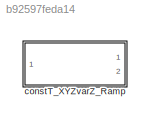
MODEL slx_b92597feda14
KIND library
CONFIG AbsTol = auto
CONFIG EnableMultiTasking = off
CONFIG FixedStep = auto
CONFIG MaxStep = auto
CONFIG MinStep = auto
CONFIG RelTol = 1e-3
CONFIG SampleTimeConstraint = Unconstrained
CONFIG Solver = VariableStepAuto
CONFIG SolverName = VariableStepAuto
CONFIG StartTime = 0.0
CONFIG StopTime = 10.0
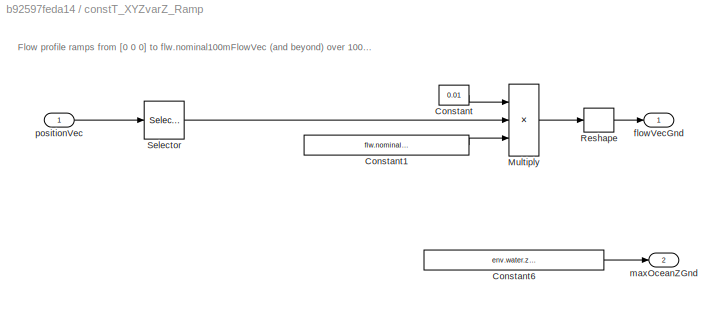
BLOCK [SubSystem] constT_XYZvarZ_Ramp
  MinAlgLoopOccurrences = on
  Ports = [1, 2]
  RequestExecContextInheritance = off
BLOCK [Constant] constT_XYZvarZ_Ramp/Constant
  Value = 0.01
BLOCK [Constant] constT_XYZvarZ_Ramp/Constant1
  Value = flw.nominal100mFlowVec.Value
BLOCK [Constant] constT_XYZvarZ_Ramp/Constant6
  Value = env.water.zGridPoints.Value(end)
BLOCK [Product] constT_XYZvarZ_Ramp/Multiply
  InputSameDT = off
  Inputs = 3
  OutDataTypeStr = Inherit: Inherit via internal rule
  Ports = [3, 1]
  RndMeth = Floor
  SaturateOnIntegerOverflow = off
BLOCK [Reshape] constT_XYZvarZ_Ramp/Reshape
  OutputDimensionality = Column vector (2-D)
  Ports = [1, 1]
BLOCK [Selector] constT_XYZvarZ_Ramp/Selector
  IndexOptions = Index vector (dialog)
  Indices = 3
  InputPortWidth = 3
  OutputSizes = 1
  Ports = [1, 1]
BLOCK [Outport] constT_XYZvarZ_Ramp/flowVecGnd
  IconDisplay = Port number
BLOCK [Outport] constT_XYZvarZ_Ramp/maxOceanZGnd
  IconDisplay = Port number
  Port = 2
BLOCK [Inport] constT_XYZvarZ_Ramp/positionVec
  IconDisplay = Port number
ANNOTATION constT_XYZvarZ_Ramp: Flow profile ramps from [0 0 0] to flw.nominal100mFlowVec (and beyond) over 100 m
LINE constT_XYZvarZ_Ramp/Constant1:1 -> constT_XYZvarZ_Ramp/Multiply:3
LINE constT_XYZvarZ_Ramp/Constant6:1 -> constT_XYZvarZ_Ramp/maxOceanZGnd:1
LINE constT_XYZvarZ_Ramp/Constant:1 -> constT_XYZvarZ_Ramp/Multiply:1
LINE constT_XYZvarZ_Ramp/Multiply:1 -> constT_XYZvarZ_Ramp/Reshape:1
LINE constT_XYZvarZ_Ramp/Reshape:1 -> constT_XYZvarZ_Ramp/flowVecGnd:1
LINE constT_XYZvarZ_Ramp/Selector:1 -> constT_XYZvarZ_Ramp/Multiply:2
LINE constT_XYZvarZ_Ramp/positionVec:1 -> constT_XYZvarZ_Ramp/Selector:1
